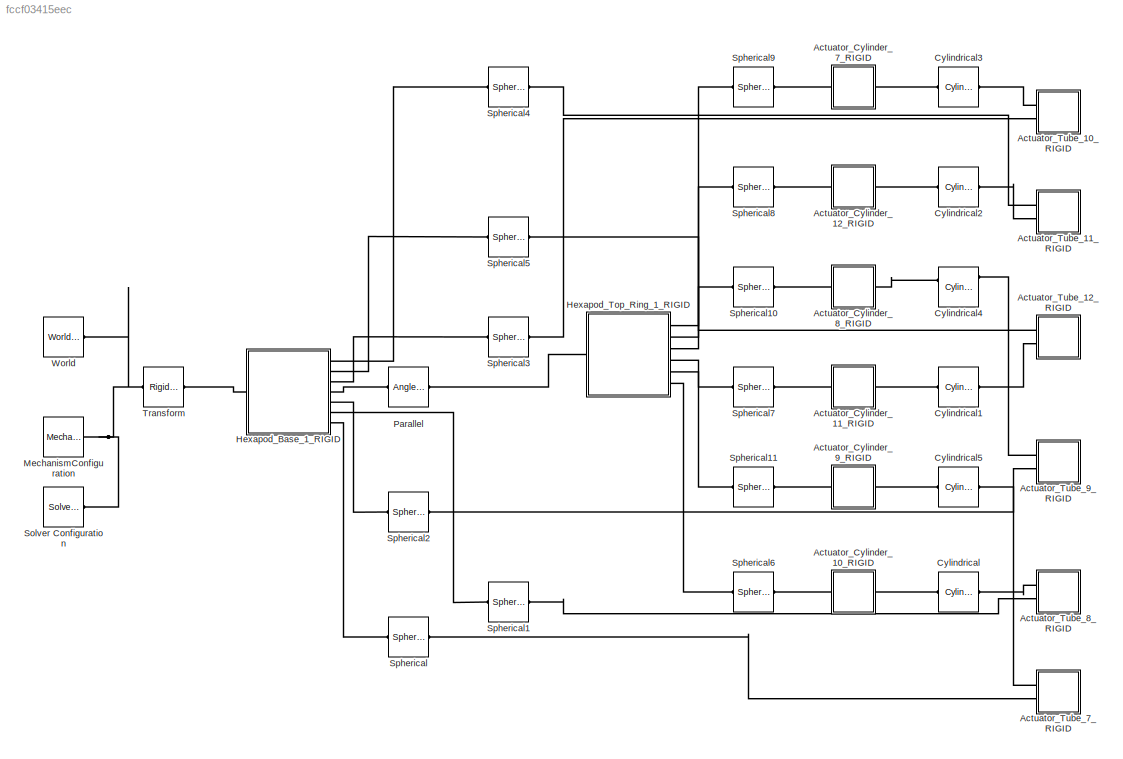
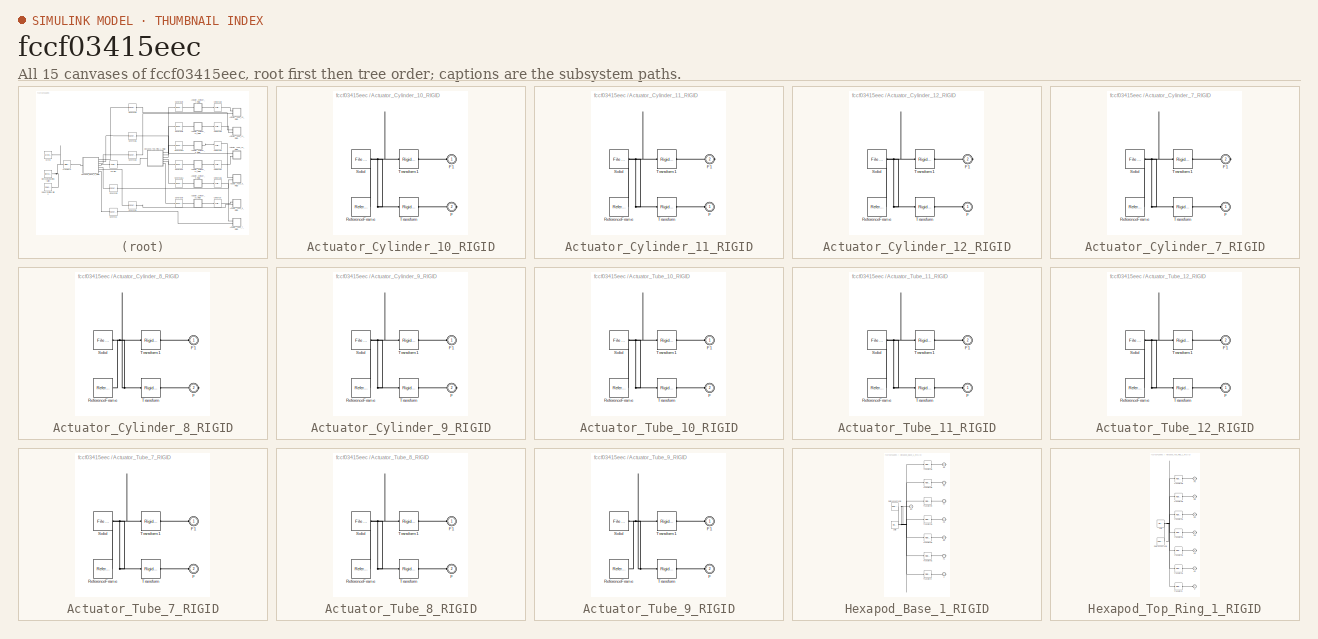
[diagram: thumbnail index - all 15 canvases of the model, root first then tree order]
MODEL slx_fccf03415eec
KIND model
CONFIG AbsTol = auto
CONFIG EnableMultiTasking = off
CONFIG FixedStep = auto
CONFIG MaxStep = auto
CONFIG MinStep = auto
CONFIG RelTol = 1e-3
CONFIG SampleTimeConstraint = Unconstrained
CONFIG SolverName = VariableStepAuto
CONFIG StartTime = 0.0
CONFIG StopTime = 10.0
WORKSPACE source: external: MATLAB File  (data not in archive)
BLOCK [SubSystem] Actuator_Cylinder_10_RIGID
  Ports = [0, 0, 0, 0, 0, 1, 1]
  RequestExecContextInheritance = off
BLOCK [PMIOPort] Actuator_Cylinder_10_RIGID/F
  Port = 2
  Side = Right
BLOCK [PMIOPort] Actuator_Cylinder_10_RIGID/F1
  Side = Left
BLOCK [Reference] Actuator_Cylinder_10_RIGID/ReferenceFrame  REF=sm_lib/Frames and
Transforms/Reference
Frame
  Ports = [0, 0, 0, 0, 0, 0, 1]
  SourceBlock = sm_lib/Frames and\nTransforms/Reference\nFrame
  SourceProductBaseCode = MS
  SourceType = Reference\nFrame
BLOCK [Reference] Actuator_Cylinder_10_RIGID/Solid  REF=sm_lib/Body Elements/File Solid
  Ports = [0, 0, 0, 0, 0, 0, 1]
  SourceBlock = sm_lib/Body Elements/File Solid
  SourceProductBaseCode = MS
  SourceType = File Solid
BLOCK [Reference] Actuator_Cylinder_10_RIGID/Transform  REF=sm_lib/Frames and
Transforms/Rigid
Transform
  Ports = [0, 0, 0, 0, 0, 1, 1]
  SourceBlock = sm_lib/Frames and\nTransforms/Rigid\nTransform
  SourceProductBaseCode = MS
  SourceType = Rigid\nTransform
BLOCK [Reference] Actuator_Cylinder_10_RIGID/Transform1  REF=sm_lib/Frames and
Transforms/Rigid
Transform
  Ports = [0, 0, 0, 0, 0, 1, 1]
  SourceBlock = sm_lib/Frames and\nTransforms/Rigid\nTransform
  SourceProductBaseCode = MS
  SourceType = Rigid\nTransform
BLOCK [SubSystem] Actuator_Cylinder_11_RIGID
  Ports = [0, 0, 0, 0, 0, 1, 1]
  RequestExecContextInheritance = off
BLOCK [PMIOPort] Actuator_Cylinder_11_RIGID/F
  Side = Left
BLOCK [PMIOPort] Actuator_Cylinder_11_RIGID/F1
  Port = 2
  Side = Right
BLOCK [Reference] Actuator_Cylinder_11_RIGID/ReferenceFrame  REF=sm_lib/Frames and
Transforms/Reference
Frame
  Ports = [0, 0, 0, 0, 0, 0, 1]
  SourceBlock = sm_lib/Frames and\nTransforms/Reference\nFrame
  SourceProductBaseCode = MS
  SourceType = Reference\nFrame
BLOCK [Reference] Actuator_Cylinder_11_RIGID/Solid  REF=sm_lib/Body Elements/File Solid
  Ports = [0, 0, 0, 0, 0, 0, 1]
  SourceBlock = sm_lib/Body Elements/File Solid
  SourceProductBaseCode = MS
  SourceType = File Solid
BLOCK [Reference] Actuator_Cylinder_11_RIGID/Transform  REF=sm_lib/Frames and
Transforms/Rigid
Transform
  Ports = [0, 0, 0, 0, 0, 1, 1]
  SourceBlock = sm_lib/Frames and\nTransforms/Rigid\nTransform
  SourceProductBaseCode = MS
  SourceType = Rigid\nTransform
BLOCK [Reference] Actuator_Cylinder_11_RIGID/Transform1  REF=sm_lib/Frames and
Transforms/Rigid
Transform
  Ports = [0, 0, 0, 0, 0, 1, 1]
  SourceBlock = sm_lib/Frames and\nTransforms/Rigid\nTransform
  SourceProductBaseCode = MS
  SourceType = Rigid\nTransform
BLOCK [SubSystem] Actuator_Cylinder_12_RIGID
  Ports = [0, 0, 0, 0, 0, 1, 1]
  RequestExecContextInheritance = off
BLOCK [PMIOPort] Actuator_Cylinder_12_RIGID/F
  Side = Left
BLOCK [PMIOPort] Actuator_Cylinder_12_RIGID/F1
  Port = 2
  Side = Right
BLOCK [Reference] Actuator_Cylinder_12_RIGID/ReferenceFrame  REF=sm_lib/Frames and
Transforms/Reference
Frame
  Ports = [0, 0, 0, 0, 0, 0, 1]
  SourceBlock = sm_lib/Frames and\nTransforms/Reference\nFrame
  SourceProductBaseCode = MS
  SourceType = Reference\nFrame
BLOCK [Reference] Actuator_Cylinder_12_RIGID/Solid  REF=sm_lib/Body Elements/File Solid
  Ports = [0, 0, 0, 0, 0, 0, 1]
  SourceBlock = sm_lib/Body Elements/File Solid
  SourceProductBaseCode = MS
  SourceType = File Solid
BLOCK [Reference] Actuator_Cylinder_12_RIGID/Transform  REF=sm_lib/Frames and
Transforms/Rigid
Transform
  Ports = [0, 0, 0, 0, 0, 1, 1]
  SourceBlock = sm_lib/Frames and\nTransforms/Rigid\nTransform
  SourceProductBaseCode = MS
  SourceType = Rigid\nTransform
BLOCK [Reference] Actuator_Cylinder_12_RIGID/Transform1  REF=sm_lib/Frames and
Transforms/Rigid
Transform
  Ports = [0, 0, 0, 0, 0, 1, 1]
  SourceBlock = sm_lib/Frames and\nTransforms/Rigid\nTransform
  SourceProductBaseCode = MS
  SourceType = Rigid\nTransform
BLOCK [SubSystem] Actuator_Cylinder_7_RIGID
  Ports = [0, 0, 0, 0, 0, 1, 1]
  RequestExecContextInheritance = off
BLOCK [PMIOPort] Actuator_Cylinder_7_RIGID/F
  Side = Left
BLOCK [PMIOPort] Actuator_Cylinder_7_RIGID/F1
  Port = 2
  Side = Right
BLOCK [Reference] Actuator_Cylinder_7_RIGID/ReferenceFrame  REF=sm_lib/Frames and
Transforms/Reference
Frame
  Ports = [0, 0, 0, 0, 0, 0, 1]
  SourceBlock = sm_lib/Frames and\nTransforms/Reference\nFrame
  SourceProductBaseCode = MS
  SourceType = Reference\nFrame
BLOCK [Reference] Actuator_Cylinder_7_RIGID/Solid  REF=sm_lib/Body Elements/File Solid
  Ports = [0, 0, 0, 0, 0, 0, 1]
  SourceBlock = sm_lib/Body Elements/File Solid
  SourceProductBaseCode = MS
  SourceType = File Solid
BLOCK [Reference] Actuator_Cylinder_7_RIGID/Transform  REF=sm_lib/Frames and
Transforms/Rigid
Transform
  Ports = [0, 0, 0, 0, 0, 1, 1]
  SourceBlock = sm_lib/Frames and\nTransforms/Rigid\nTransform
  SourceProductBaseCode = MS
  SourceType = Rigid\nTransform
BLOCK [Reference] Actuator_Cylinder_7_RIGID/Transform1  REF=sm_lib/Frames and
Transforms/Rigid
Transform
  Ports = [0, 0, 0, 0, 0, 1, 1]
  SourceBlock = sm_lib/Frames and\nTransforms/Rigid\nTransform
  SourceProductBaseCode = MS
  SourceType = Rigid\nTransform
BLOCK [SubSystem] Actuator_Cylinder_8_RIGID
  Ports = [0, 0, 0, 0, 0, 1, 1]
  RequestExecContextInheritance = off
BLOCK [PMIOPort] Actuator_Cylinder_8_RIGID/F
  Port = 2
  Side = Right
BLOCK [PMIOPort] Actuator_Cylinder_8_RIGID/F1
  Side = Left
BLOCK [Reference] Actuator_Cylinder_8_RIGID/ReferenceFrame  REF=sm_lib/Frames and
Transforms/Reference
Frame
  Ports = [0, 0, 0, 0, 0, 0, 1]
  SourceBlock = sm_lib/Frames and\nTransforms/Reference\nFrame
  SourceProductBaseCode = MS
  SourceType = Reference\nFrame
BLOCK [Reference] Actuator_Cylinder_8_RIGID/Solid  REF=sm_lib/Body Elements/File Solid
  Ports = [0, 0, 0, 0, 0, 0, 1]
  SourceBlock = sm_lib/Body Elements/File Solid
  SourceProductBaseCode = MS
  SourceType = File Solid
BLOCK [Reference] Actuator_Cylinder_8_RIGID/Transform  REF=sm_lib/Frames and
Transforms/Rigid
Transform
  Ports = [0, 0, 0, 0, 0, 1, 1]
  SourceBlock = sm_lib/Frames and\nTransforms/Rigid\nTransform
  SourceProductBaseCode = MS
  SourceType = Rigid\nTransform
BLOCK [Reference] Actuator_Cylinder_8_RIGID/Transform1  REF=sm_lib/Frames and
Transforms/Rigid
Transform
  Ports = [0, 0, 0, 0, 0, 1, 1]
  SourceBlock = sm_lib/Frames and\nTransforms/Rigid\nTransform
  SourceProductBaseCode = MS
  SourceType = Rigid\nTransform
BLOCK [SubSystem] Actuator_Cylinder_9_RIGID
  Ports = [0, 0, 0, 0, 0, 1, 1]
  RequestExecContextInheritance = off
BLOCK [PMIOPort] Actuator_Cylinder_9_RIGID/F
  Port = 2
  Side = Right
BLOCK [PMIOPort] Actuator_Cylinder_9_RIGID/F1
  Side = Left
BLOCK [Reference] Actuator_Cylinder_9_RIGID/ReferenceFrame  REF=sm_lib/Frames and
Transforms/Reference
Frame
  Ports = [0, 0, 0, 0, 0, 0, 1]
  SourceBlock = sm_lib/Frames and\nTransforms/Reference\nFrame
  SourceProductBaseCode = MS
  SourceType = Reference\nFrame
BLOCK [Reference] Actuator_Cylinder_9_RIGID/Solid  REF=sm_lib/Body Elements/File Solid
  Ports = [0, 0, 0, 0, 0, 0, 1]
  SourceBlock = sm_lib/Body Elements/File Solid
  SourceProductBaseCode = MS
  SourceType = File Solid
BLOCK [Reference] Actuator_Cylinder_9_RIGID/Transform  REF=sm_lib/Frames and
Transforms/Rigid
Transform
  Ports = [0, 0, 0, 0, 0, 1, 1]
  SourceBlock = sm_lib/Frames and\nTransforms/Rigid\nTransform
  SourceProductBaseCode = MS
  SourceType = Rigid\nTransform
BLOCK [Reference] Actuator_Cylinder_9_RIGID/Transform1  REF=sm_lib/Frames and
Transforms/Rigid
Transform
  Ports = [0, 0, 0, 0, 0, 1, 1]
  SourceBlock = sm_lib/Frames and\nTransforms/Rigid\nTransform
  SourceProductBaseCode = MS
  SourceType = Rigid\nTransform
BLOCK [SubSystem] Actuator_Tube_10_RIGID
  Ports = [0, 0, 0, 0, 0, 2]
  RequestExecContextInheritance = off
BLOCK [PMIOPort] Actuator_Tube_10_RIGID/F
  Port = 2
  Side = Left
BLOCK [PMIOPort] Actuator_Tube_10_RIGID/F1
  Side = Left
BLOCK [Reference] Actuator_Tube_10_RIGID/ReferenceFrame  REF=sm_lib/Frames and
Transforms/Reference
Frame
  Ports = [0, 0, 0, 0, 0, 0, 1]
  SourceBlock = sm_lib/Frames and\nTransforms/Reference\nFrame
  SourceProductBaseCode = MS
  SourceType = Reference\nFrame
BLOCK [Reference] Actuator_Tube_10_RIGID/Solid  REF=sm_lib/Body Elements/File Solid
  Ports = [0, 0, 0, 0, 0, 0, 1]
  SourceBlock = sm_lib/Body Elements/File Solid
  SourceProductBaseCode = MS
  SourceType = File Solid
BLOCK [Reference] Actuator_Tube_10_RIGID/Transform  REF=sm_lib/Frames and
Transforms/Rigid
Transform
  Ports = [0, 0, 0, 0, 0, 1, 1]
  SourceBlock = sm_lib/Frames and\nTransforms/Rigid\nTransform
  SourceProductBaseCode = MS
  SourceType = Rigid\nTransform
BLOCK [Reference] Actuator_Tube_10_RIGID/Transform1  REF=sm_lib/Frames and
Transforms/Rigid
Transform
  Ports = [0, 0, 0, 0, 0, 1, 1]
  SourceBlock = sm_lib/Frames and\nTransforms/Rigid\nTransform
  SourceProductBaseCode = MS
  SourceType = Rigid\nTransform
BLOCK [SubSystem] Actuator_Tube_11_RIGID
  Ports = [0, 0, 0, 0, 0, 2]
  RequestExecContextInheritance = off
BLOCK [PMIOPort] Actuator_Tube_11_RIGID/F
  Side = Left
BLOCK [PMIOPort] Actuator_Tube_11_RIGID/F1
  Port = 2
  Side = Left
BLOCK [Reference] Actuator_Tube_11_RIGID/ReferenceFrame  REF=sm_lib/Frames and
Transforms/Reference
Frame
  Ports = [0, 0, 0, 0, 0, 0, 1]
  SourceBlock = sm_lib/Frames and\nTransforms/Reference\nFrame
  SourceProductBaseCode = MS
  SourceType = Reference\nFrame
BLOCK [Reference] Actuator_Tube_11_RIGID/Solid  REF=sm_lib/Body Elements/File Solid
  Ports = [0, 0, 0, 0, 0, 0, 1]
  SourceBlock = sm_lib/Body Elements/File Solid
  SourceProductBaseCode = MS
  SourceType = File Solid
BLOCK [Reference] Actuator_Tube_11_RIGID/Transform  REF=sm_lib/Frames and
Transforms/Rigid
Transform
  Ports = [0, 0, 0, 0, 0, 1, 1]
  SourceBlock = sm_lib/Frames and\nTransforms/Rigid\nTransform
  SourceProductBaseCode = MS
  SourceType = Rigid\nTransform
BLOCK [Reference] Actuator_Tube_11_RIGID/Transform1  REF=sm_lib/Frames and
Transforms/Rigid
Transform
  Ports = [0, 0, 0, 0, 0, 1, 1]
  SourceBlock = sm_lib/Frames and\nTransforms/Rigid\nTransform
  SourceProductBaseCode = MS
  SourceType = Rigid\nTransform
BLOCK [SubSystem] Actuator_Tube_12_RIGID
  Ports = [0, 0, 0, 0, 0, 2]
  RequestExecContextInheritance = off
BLOCK [PMIOPort] Actuator_Tube_12_RIGID/F
  Side = Left
BLOCK [PMIOPort] Actuator_Tube_12_RIGID/F1
  Port = 2
  Side = Left
BLOCK [Reference] Actuator_Tube_12_RIGID/ReferenceFrame  REF=sm_lib/Frames and
Transforms/Reference
Frame
  Ports = [0, 0, 0, 0, 0, 0, 1]
  SourceBlock = sm_lib/Frames and\nTransforms/Reference\nFrame
  SourceProductBaseCode = MS
  SourceType = Reference\nFrame
BLOCK [Reference] Actuator_Tube_12_RIGID/Solid  REF=sm_lib/Body Elements/File Solid
  Ports = [0, 0, 0, 0, 0, 0, 1]
  SourceBlock = sm_lib/Body Elements/File Solid
  SourceProductBaseCode = MS
  SourceType = File Solid
BLOCK [Reference] Actuator_Tube_12_RIGID/Transform  REF=sm_lib/Frames and
Transforms/Rigid
Transform
  Ports = [0, 0, 0, 0, 0, 1, 1]
  SourceBlock = sm_lib/Frames and\nTransforms/Rigid\nTransform
  SourceProductBaseCode = MS
  SourceType = Rigid\nTransform
BLOCK [Reference] Actuator_Tube_12_RIGID/Transform1  REF=sm_lib/Frames and
Transforms/Rigid
Transform
  Ports = [0, 0, 0, 0, 0, 1, 1]
  SourceBlock = sm_lib/Frames and\nTransforms/Rigid\nTransform
  SourceProductBaseCode = MS
  SourceType = Rigid\nTransform
BLOCK [SubSystem] Actuator_Tube_7_RIGID
  Ports = [0, 0, 0, 0, 0, 2]
  RequestExecContextInheritance = off
BLOCK [PMIOPort] Actuator_Tube_7_RIGID/F
  Port = 2
  Side = Left
BLOCK [PMIOPort] Actuator_Tube_7_RIGID/F1
  Side = Left
BLOCK [Reference] Actuator_Tube_7_RIGID/ReferenceFrame  REF=sm_lib/Frames and
Transforms/Reference
Frame
  Ports = [0, 0, 0, 0, 0, 0, 1]
  SourceBlock = sm_lib/Frames and\nTransforms/Reference\nFrame
  SourceProductBaseCode = MS
  SourceType = Reference\nFrame
BLOCK [Reference] Actuator_Tube_7_RIGID/Solid  REF=sm_lib/Body Elements/File Solid
  Ports = [0, 0, 0, 0, 0, 0, 1]
  SourceBlock = sm_lib/Body Elements/File Solid
  SourceProductBaseCode = MS
  SourceType = File Solid
BLOCK [Reference] Actuator_Tube_7_RIGID/Transform  REF=sm_lib/Frames and
Transforms/Rigid
Transform
  Ports = [0, 0, 0, 0, 0, 1, 1]
  SourceBlock = sm_lib/Frames and\nTransforms/Rigid\nTransform
  SourceProductBaseCode = MS
  SourceType = Rigid\nTransform
BLOCK [Reference] Actuator_Tube_7_RIGID/Transform1  REF=sm_lib/Frames and
Transforms/Rigid
Transform
  Ports = [0, 0, 0, 0, 0, 1, 1]
  SourceBlock = sm_lib/Frames and\nTransforms/Rigid\nTransform
  SourceProductBaseCode = MS
  SourceType = Rigid\nTransform
BLOCK [SubSystem] Actuator_Tube_8_RIGID
  Ports = [0, 0, 0, 0, 0, 2]
  RequestExecContextInheritance = off
BLOCK [PMIOPort] Actuator_Tube_8_RIGID/F
  Port = 2
  Side = Left
BLOCK [PMIOPort] Actuator_Tube_8_RIGID/F1
  Side = Left
BLOCK [Reference] Actuator_Tube_8_RIGID/ReferenceFrame  REF=sm_lib/Frames and
Transforms/Reference
Frame
  Ports = [0, 0, 0, 0, 0, 0, 1]
  SourceBlock = sm_lib/Frames and\nTransforms/Reference\nFrame
  SourceProductBaseCode = MS
  SourceType = Reference\nFrame
BLOCK [Reference] Actuator_Tube_8_RIGID/Solid  REF=sm_lib/Body Elements/File Solid
  Ports = [0, 0, 0, 0, 0, 0, 1]
  SourceBlock = sm_lib/Body Elements/File Solid
  SourceProductBaseCode = MS
  SourceType = File Solid
BLOCK [Reference] Actuator_Tube_8_RIGID/Transform  REF=sm_lib/Frames and
Transforms/Rigid
Transform
  Ports = [0, 0, 0, 0, 0, 1, 1]
  SourceBlock = sm_lib/Frames and\nTransforms/Rigid\nTransform
  SourceProductBaseCode = MS
  SourceType = Rigid\nTransform
BLOCK [Reference] Actuator_Tube_8_RIGID/Transform1  REF=sm_lib/Frames and
Transforms/Rigid
Transform
  Ports = [0, 0, 0, 0, 0, 1, 1]
  SourceBlock = sm_lib/Frames and\nTransforms/Rigid\nTransform
  SourceProductBaseCode = MS
  SourceType = Rigid\nTransform
BLOCK [SubSystem] Actuator_Tube_9_RIGID
  Ports = [0, 0, 0, 0, 0, 2]
  RequestExecContextInheritance = off
BLOCK [PMIOPort] Actuator_Tube_9_RIGID/F
  Port = 2
  Side = Left
BLOCK [PMIOPort] Actuator_Tube_9_RIGID/F1
  Side = Left
BLOCK [Reference] Actuator_Tube_9_RIGID/ReferenceFrame  REF=sm_lib/Frames and
Transforms/Reference
Frame
  Ports = [0, 0, 0, 0, 0, 0, 1]
  SourceBlock = sm_lib/Frames and\nTransforms/Reference\nFrame
  SourceProductBaseCode = MS
  SourceType = Reference\nFrame
BLOCK [Reference] Actuator_Tube_9_RIGID/Solid  REF=sm_lib/Body Elements/File Solid
  Ports = [0, 0, 0, 0, 0, 0, 1]
  SourceBlock = sm_lib/Body Elements/File Solid
  SourceProductBaseCode = MS
  SourceType = File Solid
BLOCK [Reference] Actuator_Tube_9_RIGID/Transform  REF=sm_lib/Frames and
Transforms/Rigid
Transform
  Ports = [0, 0, 0, 0, 0, 1, 1]
  SourceBlock = sm_lib/Frames and\nTransforms/Rigid\nTransform
  SourceProductBaseCode = MS
  SourceType = Rigid\nTransform
BLOCK [Reference] Actuator_Tube_9_RIGID/Transform1  REF=sm_lib/Frames and
Transforms/Rigid
Transform
  Ports = [0, 0, 0, 0, 0, 1, 1]
  SourceBlock = sm_lib/Frames and\nTransforms/Rigid\nTransform
  SourceProductBaseCode = MS
  SourceType = Rigid\nTransform
BLOCK [Reference] Cylindrical  REF=sm_lib/Joints/Cylindrical
Joint
  Ports = [0, 0, 0, 0, 0, 1, 1]
  SourceBlock = sm_lib/Joints/Cylindrical\nJoint
  SourceProductBaseCode = MS
  SourceType = Cylindrical\nJoint
BLOCK [Reference] Cylindrical1  REF=sm_lib/Joints/Cylindrical
Joint
  Ports = [0, 0, 0, 0, 0, 1, 1]
  SourceBlock = sm_lib/Joints/Cylindrical\nJoint
  SourceProductBaseCode = MS
  SourceType = Cylindrical\nJoint
BLOCK [Reference] Cylindrical2  REF=sm_lib/Joints/Cylindrical
Joint
  Ports = [0, 0, 0, 0, 0, 1, 1]
  SourceBlock = sm_lib/Joints/Cylindrical\nJoint
  SourceProductBaseCode = MS
  SourceType = Cylindrical\nJoint
BLOCK [Reference] Cylindrical3  REF=sm_lib/Joints/Cylindrical
Joint
  Ports = [0, 0, 0, 0, 0, 1, 1]
  SourceBlock = sm_lib/Joints/Cylindrical\nJoint
  SourceProductBaseCode = MS
  SourceType = Cylindrical\nJoint
BLOCK [Reference] Cylindrical4  REF=sm_lib/Joints/Cylindrical
Joint
  Ports = [0, 0, 0, 0, 0, 2, 3]
  SourceBlock = sm_lib/Joints/Cylindrical\nJoint
  SourceProductBaseCode = MS
  SourceType = Cylindrical\nJoint
BLOCK [Reference] Cylindrical5  REF=sm_lib/Joints/Cylindrical
Joint
  Ports = [0, 0, 0, 0, 0, 1, 1]
  SourceBlock = sm_lib/Joints/Cylindrical\nJoint
  SourceProductBaseCode = MS
  SourceType = Cylindrical\nJoint
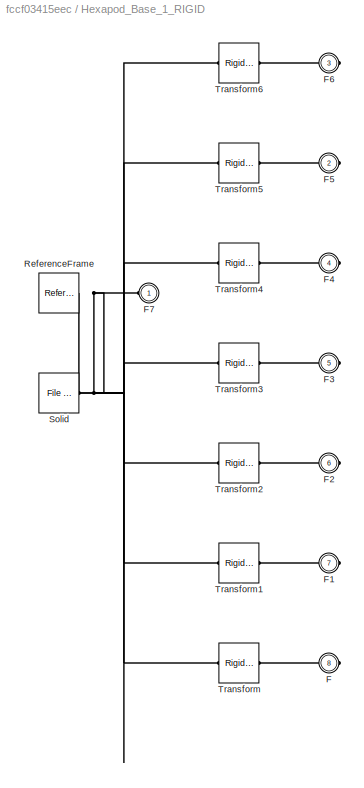
BLOCK [SubSystem] Hexapod_Base_1_RIGID
  Ports = [0, 0, 0, 0, 0, 1, 7]
  RequestExecContextInheritance = off
BLOCK [PMIOPort] Hexapod_Base_1_RIGID/F
  Port = 8
  Side = Right
BLOCK [PMIOPort] Hexapod_Base_1_RIGID/F1
  Port = 7
  Side = Right
BLOCK [PMIOPort] Hexapod_Base_1_RIGID/F2
  Port = 6
  Side = Right
BLOCK [PMIOPort] Hexapod_Base_1_RIGID/F3
  Port = 5
  Side = Right
BLOCK [PMIOPort] Hexapod_Base_1_RIGID/F4
  Port = 4
  Side = Right
BLOCK [PMIOPort] Hexapod_Base_1_RIGID/F5
  Port = 2
  Side = Right
BLOCK [PMIOPort] Hexapod_Base_1_RIGID/F6
  Port = 3
  Side = Right
BLOCK [PMIOPort] Hexapod_Base_1_RIGID/F7
  Side = Left
BLOCK [Reference] Hexapod_Base_1_RIGID/ReferenceFrame  REF=sm_lib/Frames and
Transforms/Reference
Frame
  Ports = [0, 0, 0, 0, 0, 0, 1]
  SourceBlock = sm_lib/Frames and\nTransforms/Reference\nFrame
  SourceProductBaseCode = MS
  SourceType = Reference\nFrame
BLOCK [Reference] Hexapod_Base_1_RIGID/Solid  REF=sm_lib/Body Elements/File Solid
  Ports = [0, 0, 0, 0, 0, 0, 1]
  SourceBlock = sm_lib/Body Elements/File Solid
  SourceProductBaseCode = MS
  SourceType = File Solid
BLOCK [Reference] Hexapod_Base_1_RIGID/Transform  REF=sm_lib/Frames and
Transforms/Rigid
Transform
  Ports = [0, 0, 0, 0, 0, 1, 1]
  SourceBlock = sm_lib/Frames and\nTransforms/Rigid\nTransform
  SourceProductBaseCode = MS
  SourceType = Rigid\nTransform
BLOCK [Reference] Hexapod_Base_1_RIGID/Transform1  REF=sm_lib/Frames and
Transforms/Rigid
Transform
  Ports = [0, 0, 0, 0, 0, 1, 1]
  SourceBlock = sm_lib/Frames and\nTransforms/Rigid\nTransform
  SourceProductBaseCode = MS
  SourceType = Rigid\nTransform
BLOCK [Reference] Hexapod_Base_1_RIGID/Transform2  REF=sm_lib/Frames and
Transforms/Rigid
Transform
  Ports = [0, 0, 0, 0, 0, 1, 1]
  SourceBlock = sm_lib/Frames and\nTransforms/Rigid\nTransform
  SourceProductBaseCode = MS
  SourceType = Rigid\nTransform
BLOCK [Reference] Hexapod_Base_1_RIGID/Transform3  REF=sm_lib/Frames and
Transforms/Rigid
Transform
  Ports = [0, 0, 0, 0, 0, 1, 1]
  SourceBlock = sm_lib/Frames and\nTransforms/Rigid\nTransform
  SourceProductBaseCode = MS
  SourceType = Rigid\nTransform
BLOCK [Reference] Hexapod_Base_1_RIGID/Transform4  REF=sm_lib/Frames and
Transforms/Rigid
Transform
  Ports = [0, 0, 0, 0, 0, 1, 1]
  SourceBlock = sm_lib/Frames and\nTransforms/Rigid\nTransform
  SourceProductBaseCode = MS
  SourceType = Rigid\nTransform
BLOCK [Reference] Hexapod_Base_1_RIGID/Transform5  REF=sm_lib/Frames and
Transforms/Rigid
Transform
  Ports = [0, 0, 0, 0, 0, 1, 1]
  SourceBlock = sm_lib/Frames and\nTransforms/Rigid\nTransform
  SourceProductBaseCode = MS
  SourceType = Rigid\nTransform
BLOCK [Reference] Hexapod_Base_1_RIGID/Transform6  REF=sm_lib/Frames and
Transforms/Rigid
Transform
  Ports = [0, 0, 0, 0, 0, 1, 1]
  SourceBlock = sm_lib/Frames and\nTransforms/Rigid\nTransform
  SourceProductBaseCode = MS
  SourceType = Rigid\nTransform
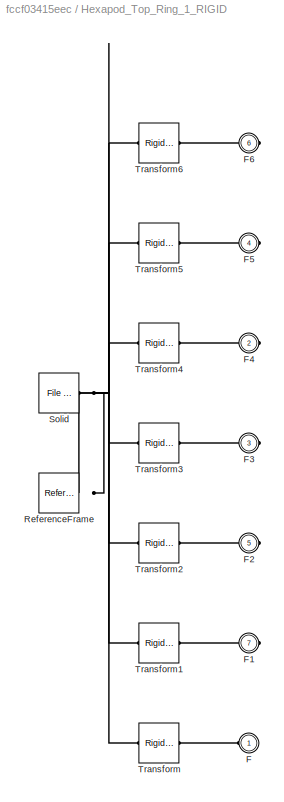
BLOCK [SubSystem] Hexapod_Top_Ring_1_RIGID
  Ports = [0, 0, 0, 0, 0, 1, 6]
  RequestExecContextInheritance = off
BLOCK [PMIOPort] Hexapod_Top_Ring_1_RIGID/F
  Side = Left
BLOCK [PMIOPort] Hexapod_Top_Ring_1_RIGID/F1
  Port = 7
  Side = Right
BLOCK [PMIOPort] Hexapod_Top_Ring_1_RIGID/F2
  Port = 5
  Side = Right
BLOCK [PMIOPort] Hexapod_Top_Ring_1_RIGID/F3
  Port = 3
  Side = Right
BLOCK [PMIOPort] Hexapod_Top_Ring_1_RIGID/F4
  Port = 2
  Side = Right
BLOCK [PMIOPort] Hexapod_Top_Ring_1_RIGID/F5
  Port = 4
  Side = Right
BLOCK [PMIOPort] Hexapod_Top_Ring_1_RIGID/F6
  Port = 6
  Side = Right
BLOCK [Reference] Hexapod_Top_Ring_1_RIGID/ReferenceFrame  REF=sm_lib/Frames and
Transforms/Reference
Frame
  Ports = [0, 0, 0, 0, 0, 0, 1]
  SourceBlock = sm_lib/Frames and\nTransforms/Reference\nFrame
  SourceProductBaseCode = MS
  SourceType = Reference\nFrame
BLOCK [Reference] Hexapod_Top_Ring_1_RIGID/Solid  REF=sm_lib/Body Elements/File Solid
  Ports = [0, 0, 0, 0, 0, 0, 1]
  SourceBlock = sm_lib/Body Elements/File Solid
  SourceProductBaseCode = MS
  SourceType = File Solid
BLOCK [Reference] Hexapod_Top_Ring_1_RIGID/Transform  REF=sm_lib/Frames and
Transforms/Rigid
Transform
  Ports = [0, 0, 0, 0, 0, 1, 1]
  SourceBlock = sm_lib/Frames and\nTransforms/Rigid\nTransform
  SourceProductBaseCode = MS
  SourceType = Rigid\nTransform
BLOCK [Reference] Hexapod_Top_Ring_1_RIGID/Transform1  REF=sm_lib/Frames and
Transforms/Rigid
Transform
  Ports = [0, 0, 0, 0, 0, 1, 1]
  SourceBlock = sm_lib/Frames and\nTransforms/Rigid\nTransform
  SourceProductBaseCode = MS
  SourceType = Rigid\nTransform
BLOCK [Reference] Hexapod_Top_Ring_1_RIGID/Transform2  REF=sm_lib/Frames and
Transforms/Rigid
Transform
  Ports = [0, 0, 0, 0, 0, 1, 1]
  SourceBlock = sm_lib/Frames and\nTransforms/Rigid\nTransform
  SourceProductBaseCode = MS
  SourceType = Rigid\nTransform
BLOCK [Reference] Hexapod_Top_Ring_1_RIGID/Transform3  REF=sm_lib/Frames and
Transforms/Rigid
Transform
  Ports = [0, 0, 0, 0, 0, 1, 1]
  SourceBlock = sm_lib/Frames and\nTransforms/Rigid\nTransform
  SourceProductBaseCode = MS
  SourceType = Rigid\nTransform
BLOCK [Reference] Hexapod_Top_Ring_1_RIGID/Transform4  REF=sm_lib/Frames and
Transforms/Rigid
Transform
  Ports = [0, 0, 0, 0, 0, 1, 1]
  SourceBlock = sm_lib/Frames and\nTransforms/Rigid\nTransform
  SourceProductBaseCode = MS
  SourceType = Rigid\nTransform
BLOCK [Reference] Hexapod_Top_Ring_1_RIGID/Transform5  REF=sm_lib/Frames and
Transforms/Rigid
Transform
  Ports = [0, 0, 0, 0, 0, 1, 1]
  SourceBlock = sm_lib/Frames and\nTransforms/Rigid\nTransform
  SourceProductBaseCode = MS
  SourceType = Rigid\nTransform
BLOCK [Reference] Hexapod_Top_Ring_1_RIGID/Transform6  REF=sm_lib/Frames and
Transforms/Rigid
Transform
  Ports = [0, 0, 0, 0, 0, 1, 1]
  SourceBlock = sm_lib/Frames and\nTransforms/Rigid\nTransform
  SourceProductBaseCode = MS
  SourceType = Rigid\nTransform
BLOCK [Reference] MechanismConfiguration  REF=sm_lib/Utilities/Mechanism
Configuration
  Ports = [0, 0, 0, 0, 0, 0, 1]
  SourceBlock = sm_lib/Utilities/Mechanism\nConfiguration
  SourceProductBaseCode = MS
  SourceType = Mechanism\nConfiguration
BLOCK [Reference] Parallel  REF=sm_lib/Constraints/Angle
Constraint
  Ports = [0, 0, 0, 0, 0, 1, 1]
  SourceBlock = sm_lib/Constraints/Angle\nConstraint
  SourceProductBaseCode = MS
  SourceType = Angle\nConstraint
BLOCK [Reference] Solver Configuration  REF=nesl_utility/Solver
Configuration
  Ports = [0, 0, 0, 0, 0, 0, 1]
  SourceBlock = nesl_utility/Solver\nConfiguration
  SourceProductBaseCode = SS
  SourceType = Solver\nConfiguration
BLOCK [Reference] Spherical  REF=sm_lib/Joints/Spherical
Joint
  Ports = [0, 0, 0, 0, 0, 1, 1]
  SourceBlock = sm_lib/Joints/Spherical\nJoint
  SourceProductBaseCode = MS
  SourceType = Spherical\nJoint
BLOCK [Reference] Spherical1  REF=sm_lib/Joints/Spherical
Joint
  Ports = [0, 0, 0, 0, 0, 1, 1]
  SourceBlock = sm_lib/Joints/Spherical\nJoint
  SourceProductBaseCode = MS
  SourceType = Spherical\nJoint
BLOCK [Reference] Spherical10  REF=sm_lib/Joints/Spherical
Joint
  Ports = [0, 0, 0, 0, 0, 1, 1]
  SourceBlock = sm_lib/Joints/Spherical\nJoint
  SourceProductBaseCode = MS
  SourceType = Spherical\nJoint
BLOCK [Reference] Spherical11  REF=sm_lib/Joints/Spherical
Joint
  Ports = [0, 0, 0, 0, 0, 1, 1]
  SourceBlock = sm_lib/Joints/Spherical\nJoint
  SourceProductBaseCode = MS
  SourceType = Spherical\nJoint
BLOCK [Reference] Spherical2  REF=sm_lib/Joints/Spherical
Joint
  Ports = [0, 0, 0, 0, 0, 1, 1]
  SourceBlock = sm_lib/Joints/Spherical\nJoint
  SourceProductBaseCode = MS
  SourceType = Spherical\nJoint
BLOCK [Reference] Spherical3  REF=sm_lib/Joints/Spherical
Joint
  Ports = [0, 0, 0, 0, 0, 1, 1]
  SourceBlock = sm_lib/Joints/Spherical\nJoint
  SourceProductBaseCode = MS
  SourceType = Spherical\nJoint
BLOCK [Reference] Spherical4  REF=sm_lib/Joints/Spherical
Joint
  Ports = [0, 0, 0, 0, 0, 1, 1]
  SourceBlock = sm_lib/Joints/Spherical\nJoint
  SourceProductBaseCode = MS
  SourceType = Spherical\nJoint
BLOCK [Reference] Spherical5  REF=sm_lib/Joints/Spherical
Joint
  Ports = [0, 0, 0, 0, 0, 1, 1]
  SourceBlock = sm_lib/Joints/Spherical\nJoint
  SourceProductBaseCode = MS
  SourceType = Spherical\nJoint
BLOCK [Reference] Spherical6  REF=sm_lib/Joints/Spherical
Joint
  Ports = [0, 0, 0, 0, 0, 1, 1]
  SourceBlock = sm_lib/Joints/Spherical\nJoint
  SourceProductBaseCode = MS
  SourceType = Spherical\nJoint
BLOCK [Reference] Spherical7  REF=sm_lib/Joints/Spherical
Joint
  Ports = [0, 0, 0, 0, 0, 1, 1]
  SourceBlock = sm_lib/Joints/Spherical\nJoint
  SourceProductBaseCode = MS
  SourceType = Spherical\nJoint
BLOCK [Reference] Spherical8  REF=sm_lib/Joints/Spherical
Joint
  Ports = [0, 0, 0, 0, 0, 1, 1]
  SourceBlock = sm_lib/Joints/Spherical\nJoint
  SourceProductBaseCode = MS
  SourceType = Spherical\nJoint
BLOCK [Reference] Spherical9  REF=sm_lib/Joints/Spherical
Joint
  Ports = [0, 0, 0, 0, 0, 1, 1]
  SourceBlock = sm_lib/Joints/Spherical\nJoint
  SourceProductBaseCode = MS
  SourceType = Spherical\nJoint
BLOCK [Reference] Transform  REF=sm_lib/Frames and
Transforms/Rigid
Transform
  Ports = [0, 0, 0, 0, 0, 1, 1]
  SourceBlock = sm_lib/Frames and\nTransforms/Rigid\nTransform
  SourceProductBaseCode = MS
  SourceType = Rigid\nTransform
BLOCK [Reference] World  REF=sm_lib/Frames and
Transforms/World Frame
  Ports = [0, 0, 0, 0, 0, 0, 1]
  SourceBlock = sm_lib/Frames and\nTransforms/World Frame
  SourceProductBaseCode = MS
  SourceType = World Frame
PLINE Actuator_Cylinder_10_RIGID/F1:RConn1 -- Actuator_Cylinder_10_RIGID/Transform1:RConn1
PLINE Actuator_Cylinder_10_RIGID/F:RConn1 -- Actuator_Cylinder_10_RIGID/Transform:RConn1
PNET net1: Actuator_Cylinder_10_RIGID/ReferenceFrame:RConn1 -- Actuator_Cylinder_10_RIGID/Solid:RConn1 -- Actuator_Cylinder_10_RIGID/Transform1:LConn1 -- Actuator_Cylinder_10_RIGID/Transform:LConn1
PLINE Actuator_Cylinder_10_RIGID:LConn1 -- Spherical6:RConn1
PLINE Actuator_Cylinder_10_RIGID:RConn1 -- Cylindrical:LConn1
PLINE Actuator_Cylinder_11_RIGID/F1:RConn1 -- Actuator_Cylinder_11_RIGID/Transform1:RConn1
PLINE Actuator_Cylinder_11_RIGID/F:RConn1 -- Actuator_Cylinder_11_RIGID/Transform:RConn1
PNET net2: Actuator_Cylinder_11_RIGID/ReferenceFrame:RConn1 -- Actuator_Cylinder_11_RIGID/Solid:RConn1 -- Actuator_Cylinder_11_RIGID/Transform1:LConn1 -- Actuator_Cylinder_11_RIGID/Transform:LConn1
PLINE Actuator_Cylinder_11_RIGID:LConn1 -- Spherical7:RConn1
PLINE Actuator_Cylinder_11_RIGID:RConn1 -- Cylindrical1:LConn1
PLINE Actuator_Cylinder_12_RIGID/F1:RConn1 -- Actuator_Cylinder_12_RIGID/Transform1:RConn1
PLINE Actuator_Cylinder_12_RIGID/F:RConn1 -- Actuator_Cylinder_12_RIGID/Transform:RConn1
PNET net3: Actuator_Cylinder_12_RIGID/ReferenceFrame:RConn1 -- Actuator_Cylinder_12_RIGID/Solid:RConn1 -- Actuator_Cylinder_12_RIGID/Transform1:LConn1 -- Actuator_Cylinder_12_RIGID/Transform:LConn1
PLINE Actuator_Cylinder_12_RIGID:LConn1 -- Spherical8:RConn1
PLINE Actuator_Cylinder_12_RIGID:RConn1 -- Cylindrical2:LConn1
PLINE Actuator_Cylinder_7_RIGID/F1:RConn1 -- Actuator_Cylinder_7_RIGID/Transform1:RConn1
PLINE Actuator_Cylinder_7_RIGID/F:RConn1 -- Actuator_Cylinder_7_RIGID/Transform:RConn1
PNET net4: Actuator_Cylinder_7_RIGID/ReferenceFrame:RConn1 -- Actuator_Cylinder_7_RIGID/Solid:RConn1 -- Actuator_Cylinder_7_RIGID/Transform1:LConn1 -- Actuator_Cylinder_7_RIGID/Transform:LConn1
PLINE Actuator_Cylinder_7_RIGID:LConn1 -- Spherical9:RConn1
PLINE Actuator_Cylinder_7_RIGID:RConn1 -- Cylindrical3:LConn1
PLINE Actuator_Cylinder_8_RIGID/F1:RConn1 -- Actuator_Cylinder_8_RIGID/Transform1:RConn1
PLINE Actuator_Cylinder_8_RIGID/F:RConn1 -- Actuator_Cylinder_8_RIGID/Transform:RConn1
PNET net5: Actuator_Cylinder_8_RIGID/ReferenceFrame:RConn1 -- Actuator_Cylinder_8_RIGID/Solid:RConn1 -- Actuator_Cylinder_8_RIGID/Transform1:LConn1 -- Actuator_Cylinder_8_RIGID/Transform:LConn1
PLINE Actuator_Cylinder_8_RIGID:LConn1 -- Spherical10:RConn1
PLINE Actuator_Cylinder_8_RIGID:RConn1 -- Cylindrical4:LConn1
PLINE Actuator_Cylinder_9_RIGID/F1:RConn1 -- Actuator_Cylinder_9_RIGID/Transform1:RConn1
PLINE Actuator_Cylinder_9_RIGID/F:RConn1 -- Actuator_Cylinder_9_RIGID/Transform:RConn1
PNET net6: Actuator_Cylinder_9_RIGID/ReferenceFrame:RConn1 -- Actuator_Cylinder_9_RIGID/Solid:RConn1 -- Actuator_Cylinder_9_RIGID/Transform1:LConn1 -- Actuator_Cylinder_9_RIGID/Transform:LConn1
PLINE Actuator_Cylinder_9_RIGID:LConn1 -- Spherical11:RConn1
PLINE Actuator_Cylinder_9_RIGID:RConn1 -- Cylindrical5:LConn1
PLINE Actuator_Tube_10_RIGID/F1:RConn1 -- Actuator_Tube_10_RIGID/Transform1:RConn1
PLINE Actuator_Tube_10_RIGID/F:RConn1 -- Actuator_Tube_10_RIGID/Transform:RConn1
PNET net7: Actuator_Tube_10_RIGID/ReferenceFrame:RConn1 -- Actuator_Tube_10_RIGID/Solid:RConn1 -- Actuator_Tube_10_RIGID/Transform1:LConn1 -- Actuator_Tube_10_RIGID/Transform:LConn1
PLINE Actuator_Tube_10_RIGID:LConn1 -- Cylindrical3:RConn1
PLINE Actuator_Tube_10_RIGID:LConn2 -- Spherical3:RConn1
PLINE Actuator_Tube_11_RIGID/F1:RConn1 -- Actuator_Tube_11_RIGID/Transform1:RConn1
PLINE Actuator_Tube_11_RIGID/F:RConn1 -- Actuator_Tube_11_RIGID/Transform:RConn1
PNET net8: Actuator_Tube_11_RIGID/ReferenceFrame:RConn1 -- Actuator_Tube_11_RIGID/Solid:RConn1 -- Actuator_Tube_11_RIGID/Transform1:LConn1 -- Actuator_Tube_11_RIGID/Transform:LConn1
PLINE Actuator_Tube_11_RIGID:LConn1 -- Spherical4:RConn1
PLINE Actuator_Tube_11_RIGID:LConn2 -- Cylindrical2:RConn1
PLINE Actuator_Tube_12_RIGID/F1:RConn1 -- Actuator_Tube_12_RIGID/Transform1:RConn1
PLINE Actuator_Tube_12_RIGID/F:RConn1 -- Actuator_Tube_12_RIGID/Transform:RConn1
PNET net9: Actuator_Tube_12_RIGID/ReferenceFrame:RConn1 -- Actuator_Tube_12_RIGID/Solid:RConn1 -- Actuator_Tube_12_RIGID/Transform1:LConn1 -- Actuator_Tube_12_RIGID/Transform:LConn1
PLINE Actuator_Tube_12_RIGID:LConn1 -- Spherical5:RConn1
PLINE Actuator_Tube_12_RIGID:LConn2 -- Cylindrical1:RConn1
PLINE Actuator_Tube_7_RIGID/F1:RConn1 -- Actuator_Tube_7_RIGID/Transform1:RConn1
PLINE Actuator_Tube_7_RIGID/F:RConn1 -- Actuator_Tube_7_RIGID/Transform:RConn1
PNET net10: Actuator_Tube_7_RIGID/ReferenceFrame:RConn1 -- Actuator_Tube_7_RIGID/Solid:RConn1 -- Actuator_Tube_7_RIGID/Transform1:LConn1 -- Actuator_Tube_7_RIGID/Transform:LConn1
PLINE Actuator_Tube_7_RIGID:LConn1 -- Cylindrical5:RConn1
PLINE Actuator_Tube_7_RIGID:LConn2 -- Spherical:RConn1
PLINE Actuator_Tube_8_RIGID/F1:RConn1 -- Actuator_Tube_8_RIGID/Transform1:RConn1
PLINE Actuator_Tube_8_RIGID/F:RConn1 -- Actuator_Tube_8_RIGID/Transform:RConn1
PNET net11: Actuator_Tube_8_RIGID/ReferenceFrame:RConn1 -- Actuator_Tube_8_RIGID/Solid:RConn1 -- Actuator_Tube_8_RIGID/Transform1:LConn1 -- Actuator_Tube_8_RIGID/Transform:LConn1
PLINE Actuator_Tube_8_RIGID:LConn1 -- Cylindrical:RConn1
PLINE Actuator_Tube_8_RIGID:LConn2 -- Spherical1:RConn1
PLINE Actuator_Tube_9_RIGID/F1:RConn1 -- Actuator_Tube_9_RIGID/Transform1:RConn1
PLINE Actuator_Tube_9_RIGID/F:RConn1 -- Actuator_Tube_9_RIGID/Transform:RConn1
PNET net12: Actuator_Tube_9_RIGID/ReferenceFrame:RConn1 -- Actuator_Tube_9_RIGID/Solid:RConn1 -- Actuator_Tube_9_RIGID/Transform1:LConn1 -- Actuator_Tube_9_RIGID/Transform:LConn1
PLINE Actuator_Tube_9_RIGID:LConn1 -- Cylindrical4:RConn1
PLINE Actuator_Tube_9_RIGID:LConn2 -- Spherical2:RConn1
PLINE Hexapod_Base_1_RIGID/F1:RConn1 -- Hexapod_Base_1_RIGID/Transform1:RConn1
PLINE Hexapod_Base_1_RIGID/F2:RConn1 -- Hexapod_Base_1_RIGID/Transform2:RConn1
PLINE Hexapod_Base_1_RIGID/F3:RConn1 -- Hexapod_Base_1_RIGID/Transform3:RConn1
PLINE Hexapod_Base_1_RIGID/F4:RConn1 -- Hexapod_Base_1_RIGID/Transform4:RConn1
PLINE Hexapod_Base_1_RIGID/F5:RConn1 -- Hexapod_Base_1_RIGID/Transform5:RConn1
PLINE Hexapod_Base_1_RIGID/F6:RConn1 -- Hexapod_Base_1_RIGID/Transform6:RConn1
PNET net13: Hexapod_Base_1_RIGID/F7:RConn1 -- Hexapod_Base_1_RIGID/ReferenceFrame:RConn1 -- Hexapod_Base_1_RIGID/Solid:RConn1 -- Hexapod_Base_1_RIGID/Transform1:LConn1 -- Hexapod_Base_1_RIGID/Transform2:LConn1 -- Hexapod_Base_1_RIGID/Transform3:LConn1 -- Hexapod_Base_1_RIGID/Transform4:LConn1 -- Hexapod_Base_1_RIGID/Transform5:LConn1 -- Hexapod_Base_1_RIGID/Transform6:LConn1 -- Hexapod_Base_1_RIGID/Transform:LConn1
PLINE Hexapod_Base_1_RIGID/F:RConn1 -- Hexapod_Base_1_RIGID/Transform:RConn1
PLINE Hexapod_Base_1_RIGID:LConn1 -- Transform:RConn1
PLINE Hexapod_Base_1_RIGID:RConn1 -- Spherical4:LConn1
PLINE Hexapod_Base_1_RIGID:RConn2 -- Spherical5:LConn1
PLINE Hexapod_Base_1_RIGID:RConn3 -- Spherical3:LConn1
PLINE Hexapod_Base_1_RIGID:RConn4 -- Parallel:LConn1
PLINE Hexapod_Base_1_RIGID:RConn5 -- Spherical2:LConn1
PLINE Hexapod_Base_1_RIGID:RConn6 -- Spherical1:LConn1
PLINE Hexapod_Base_1_RIGID:RConn7 -- Spherical:LConn1
PLINE Hexapod_Top_Ring_1_RIGID/F1:RConn1 -- Hexapod_Top_Ring_1_RIGID/Transform1:RConn1
PLINE Hexapod_Top_Ring_1_RIGID/F2:RConn1 -- Hexapod_Top_Ring_1_RIGID/Transform2:RConn1
PLINE Hexapod_Top_Ring_1_RIGID/F3:RConn1 -- Hexapod_Top_Ring_1_RIGID/Transform3:RConn1
PLINE Hexapod_Top_Ring_1_RIGID/F4:RConn1 -- Hexapod_Top_Ring_1_RIGID/Transform4:RConn1
PLINE Hexapod_Top_Ring_1_RIGID/F5:RConn1 -- Hexapod_Top_Ring_1_RIGID/Transform5:RConn1
PLINE Hexapod_Top_Ring_1_RIGID/F6:RConn1 -- Hexapod_Top_Ring_1_RIGID/Transform6:RConn1
PLINE Hexapod_Top_Ring_1_RIGID/F:RConn1 -- Hexapod_Top_Ring_1_RIGID/Transform:RConn1
PNET net14: Hexapod_Top_Ring_1_RIGID/ReferenceFrame:RConn1 -- Hexapod_Top_Ring_1_RIGID/Solid:RConn1 -- Hexapod_Top_Ring_1_RIGID/Transform1:LConn1 -- Hexapod_Top_Ring_1_RIGID/Transform2:LConn1 -- Hexapod_Top_Ring_1_RIGID/Transform3:LConn1 -- Hexapod_Top_Ring_1_RIGID/Transform4:LConn1 -- Hexapod_Top_Ring_1_RIGID/Transform5:LConn1 -- Hexapod_Top_Ring_1_RIGID/Transform6:LConn1 -- Hexapod_Top_Ring_1_RIGID/Transform:LConn1
PLINE Hexapod_Top_Ring_1_RIGID:LConn1 -- Parallel:RConn1
PLINE Hexapod_Top_Ring_1_RIGID:RConn1 -- Spherical9:LConn1
PLINE Hexapod_Top_Ring_1_RIGID:RConn2 -- Spherical8:LConn1
PLINE Hexapod_Top_Ring_1_RIGID:RConn3 -- Spherical10:LConn1
PLINE Hexapod_Top_Ring_1_RIGID:RConn4 -- Spherical7:LConn1
PLINE Hexapod_Top_Ring_1_RIGID:RConn5 -- Spherical11:LConn1
PLINE Hexapod_Top_Ring_1_RIGID:RConn6 -- Spherical6:LConn1
PNET net15: MechanismConfiguration:RConn1 -- Solver Configuration:RConn1 -- Transform:LConn1 -- World:RConn1
note: PNET lines group multi-terminal physical nets as a canonical sorted terminal list (undirected conserving connections); 2-terminal nets keep the pairwise PLINE form
